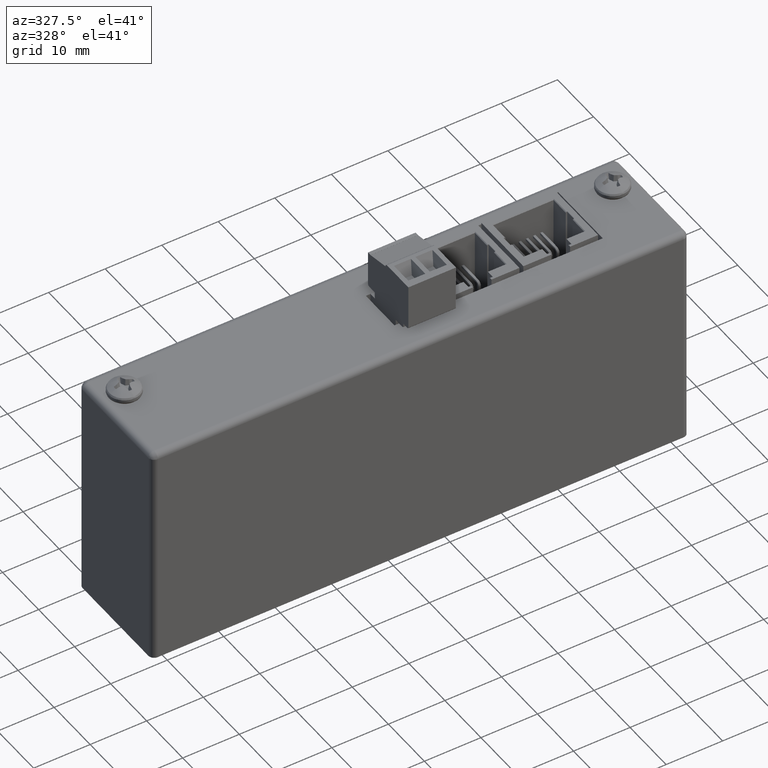
[diagram: clean part render]
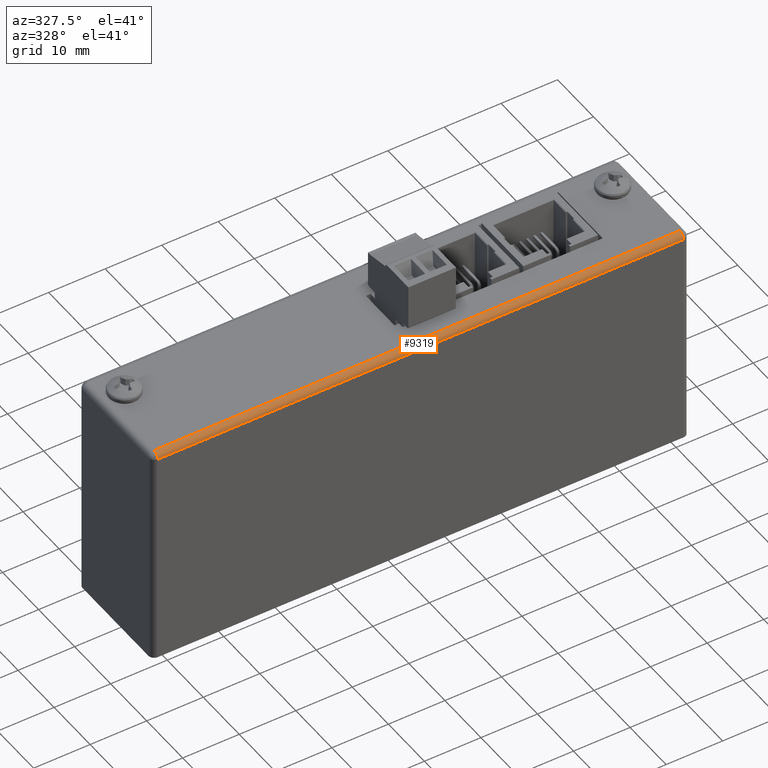
[diagram: same view with one face highlighted and labeled with its STEP entity id]
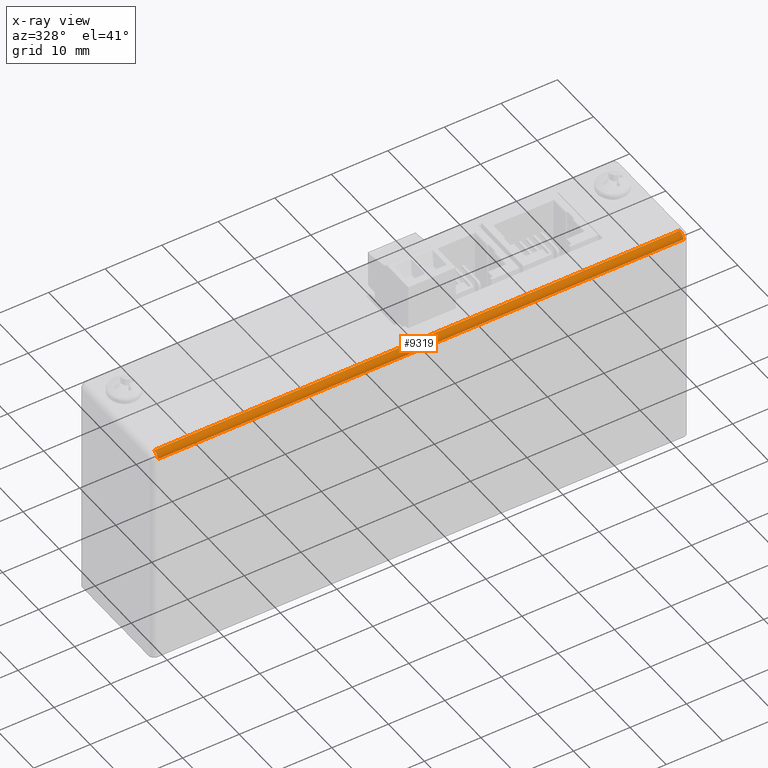
[diagram: x-ray of the same camera — body ghosted, the highlighted face saturated]
A machine part, auxiliary view. The second image highlights one B-rep face of the part: STEP entity #9319.
The next image is the same camera in x-ray: the body ghosted, the highlighted face saturated — about 0% of this face is hidden behind the body in this view.
In plain terms, the highlighted cylindrical surface (edge-blend (fillet) strip) has radius 1.016 mm, axis along (1, 0, 0).
Its self-contained STEP definition (entity closure, byte-faithful):
#1449 = DIRECTION ( 'NONE',  ( 0.000000000000000000, 0.000000000000000000, -1.000000000000000000 ) ) ;
#2468 = ORIENTED_EDGE ( 'NONE', *, *, #4434, .T. ) ;
#3240 = VECTOR ( 'NONE', #14615, 1000.000000000000000 ) ;
#3962 = ORIENTED_EDGE ( 'NONE', *, *, #19078, .T. ) ;
#4434 = EDGE_CURVE ( 'NONE', #10353, #4752, #6173, .T. ) ;
#4493 = AXIS2_PLACEMENT_3D ( 'NONE', #20867, #25034, #15117 ) ;
#4752 = VERTEX_POINT ( 'NONE', #20460 ) ;
#5815 = VECTOR ( 'NONE', #8629, 1000.000000000000000 ) ;
#6173 = LINE ( 'NONE', #18529, #5815 ) ;
#6588 = ORIENTED_EDGE ( 'NONE', *, *, #15751, .T. ) ;
#8371 = LINE ( 'NONE', #16565, #3240 ) ;
#8629 = DIRECTION ( 'NONE',  ( 1.000000000000000000, 0.000000000000000000, -0.000000000000000000 ) ) ;
#8770 = CARTESIAN_POINT ( 'NONE',  ( 0.000000000000000000, 1.016000000000000014, 1.524000000000000243 ) ) ;
#8867 = AXIS2_PLACEMENT_3D ( 'NONE', #8770, #21119, #12932 ) ;
#9319 = ADVANCED_FACE ( 'NONE', ( #25048 ), #22828, .T. ) ;
#10353 = VERTEX_POINT ( 'NONE', #21226 ) ;
#12415 = CIRCLE ( 'NONE', #4493, 1.016000000000000014 ) ;
#12932 = DIRECTION ( 'NONE',  ( 0.000000000000000000, 0.000000000000000000, -1.000000000000000000 ) ) ;
#12947 = VERTEX_POINT ( 'NONE', #22335 ) ;
#13762 = AXIS2_PLACEMENT_3D ( 'NONE', #17488, #21398, #1449 ) ;
#13934 = EDGE_LOOP ( 'NONE', ( #2468, #6588, #21336, #3962 ) ) ;
#14615 = DIRECTION ( 'NONE',  ( -1.000000000000000000, 0.000000000000000000, -0.000000000000000000 ) ) ;
#15117 = DIRECTION ( 'NONE',  ( 0.000000000000000000, 0.000000000000000000, -1.000000000000000000 ) ) ;
#15610 = EDGE_CURVE ( 'NONE', #12947, #25372, #8371, .T. ) ;
#15751 = EDGE_CURVE ( 'NONE', #4752, #12947, #12415, .T. ) ;
#16565 = CARTESIAN_POINT ( 'NONE',  ( 0.000000000000000000, 1.016000000000000014, 2.540000000000000036 ) ) ;
#17488 = CARTESIAN_POINT ( 'NONE',  ( 1.016000000000000014, 1.016000000000000014, 1.524000000000000243 ) ) ;
#18529 = CARTESIAN_POINT ( 'NONE',  ( 0.000000000000000000, 0.000000000000000000, 1.524000000000000243 ) ) ;
#19078 = EDGE_CURVE ( 'NONE', #25372, #10353, #25001, .T. ) ;
#20460 = CARTESIAN_POINT ( 'NONE',  ( 93.98399999999999466, -7.589415207398531038E-16, 1.524000000000000243 ) ) ;
#20867 = CARTESIAN_POINT ( 'NONE',  ( 93.98399999999999466, 1.016000000000000014, 1.524000000000000243 ) ) ;
#21119 = DIRECTION ( 'NONE',  ( 1.000000000000000000, -0.000000000000000000, 0.000000000000000000 ) ) ;
#21226 = CARTESIAN_POINT ( 'NONE',  ( 1.016000000000000236, 0.000000000000000000, 1.524000000000000243 ) ) ;
#21336 = ORIENTED_EDGE ( 'NONE', *, *, #15610, .T. ) ;
#21398 = DIRECTION ( 'NONE',  ( 1.000000000000000000, -0.000000000000000000, 0.000000000000000000 ) ) ;
#21514 = CARTESIAN_POINT ( 'NONE',  ( 1.016000000000000014, 1.016000000000000014, 2.540000000000000036 ) ) ;
#22335 = CARTESIAN_POINT ( 'NONE',  ( 93.98399999999999466, 1.016000000000000014, 2.540000000000000036 ) ) ;
#22828 = CYLINDRICAL_SURFACE ( 'NONE', #8867, 1.016000000000000014 ) ;
#25001 = CIRCLE ( 'NONE', #13762, 1.016000000000000014 ) ;
#25034 = DIRECTION ( 'NONE',  ( -1.000000000000000000, 0.000000000000000000, -0.000000000000000000 ) ) ;
#25048 = FACE_OUTER_BOUND ( 'NONE', #13934, .T. ) ;
#25372 = VERTEX_POINT ( 'NONE', #21514 ) ;